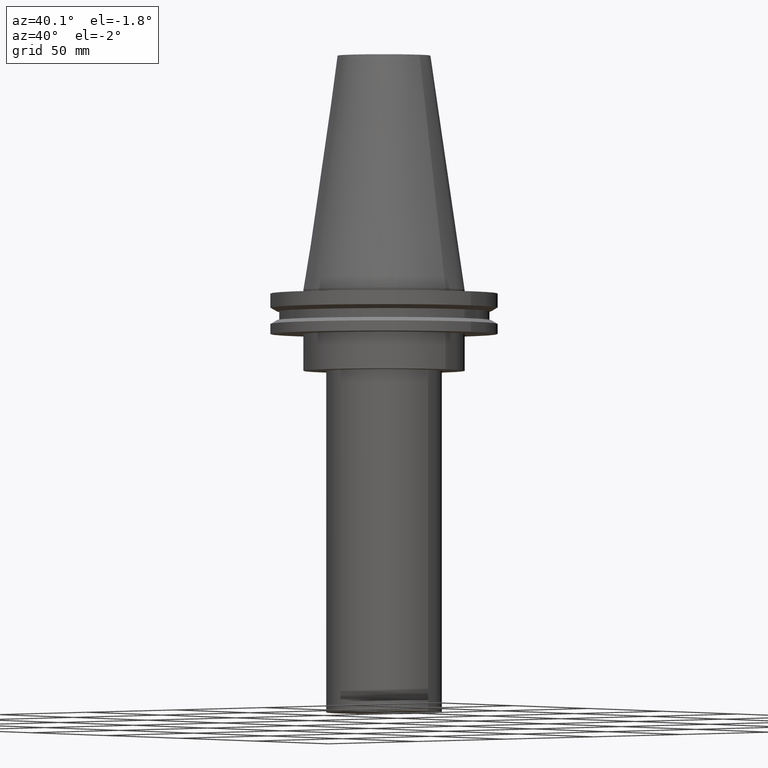
[diagram: clean part render]
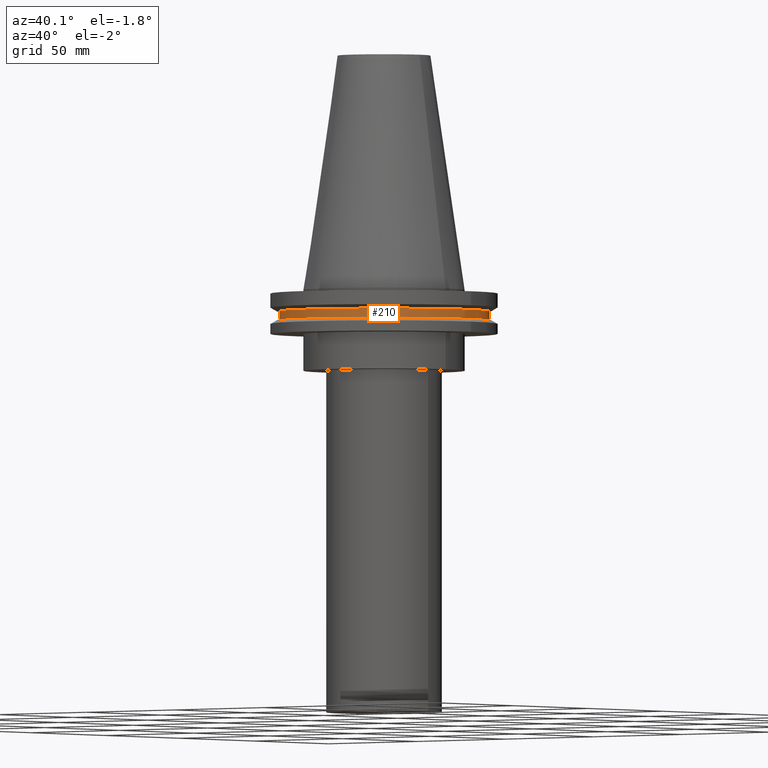
[diagram: same view with one face highlighted and labeled with its STEP entity id]
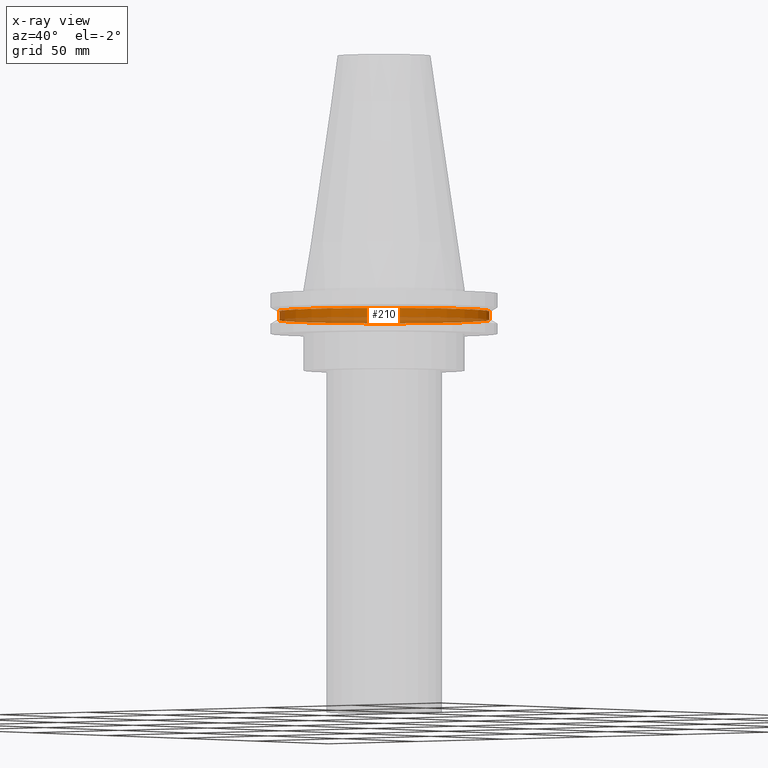
[diagram: x-ray of the same camera — body ghosted, the highlighted face saturated]
A machine part, auxiliary view. The second image highlights one B-rep face of the part: STEP entity #210.
The next image is the same camera in x-ray: the body ghosted, the highlighted face saturated — about 36% of this face is hidden behind the body in this view.
In plain terms, the highlighted cylindrical surface (bore or boss wall) has radius 45.645 mm, axis along (-0, -0, 1).
Its self-contained STEP definition (entity closure, byte-faithful):
#13 = FACE_OUTER_BOUND ( 'NONE', #174, .T. ) ;
#14 = VERTEX_POINT ( 'NONE', #305 ) ;
#16 = AXIS2_PLACEMENT_3D ( 'NONE', #20, #385, #113 ) ;
#18 = DIRECTION ( 'NONE',  ( -0.000000000000000000, -0.000000000000000000, 1.000000000000000000 ) ) ;
#20 = CARTESIAN_POINT ( 'NONE',  ( 0.000000000000000000, 0.000000000000000000, 101.5999999999999943 ) ) ;
#51 = FACE_OUTER_BOUND ( 'NONE', #371, .T. ) ;
#96 = CARTESIAN_POINT ( 'NONE',  ( 45.64500000000000313, 0.000000000000000000, -9.204999999999991189 ) ) ;
#106 = EDGE_CURVE ( 'NONE', #14, #14, #363, .T. ) ;
#113 = DIRECTION ( 'NONE',  ( 1.000000000000000000, 0.000000000000000000, 0.000000000000000000 ) ) ;
#158 = EDGE_CURVE ( 'NONE', #161, #161, #395, .T. ) ;
#161 = VERTEX_POINT ( 'NONE', #96 ) ;
#168 = CYLINDRICAL_SURFACE ( 'NONE', #16, 45.64500000000000313 ) ;
#174 = EDGE_LOOP ( 'NONE', ( #214 ) ) ;
#210 = ADVANCED_FACE ( 'NONE', ( #51, #13 ), #168, .T. ) ;
#211 = ORIENTED_EDGE ( 'NONE', *, *, #158, .F. ) ;
#214 = ORIENTED_EDGE ( 'NONE', *, *, #106, .T. ) ;
#221 = DIRECTION ( 'NONE',  ( -0.000000000000000000, -0.000000000000000000, 1.000000000000000000 ) ) ;
#229 = DIRECTION ( 'NONE',  ( 1.000000000000000000, 0.000000000000000000, 0.000000000000000000 ) ) ;
#236 = AXIS2_PLACEMENT_3D ( 'NONE', #282, #221, #260 ) ;
#251 = AXIS2_PLACEMENT_3D ( 'NONE', #289, #18, #229 ) ;
#260 = DIRECTION ( 'NONE',  ( 1.000000000000000000, 0.000000000000000000, 0.000000000000000000 ) ) ;
#282 = CARTESIAN_POINT ( 'NONE',  ( 0.000000000000000000, 0.000000000000000000, -13.05499999999999794 ) ) ;
#289 = CARTESIAN_POINT ( 'NONE',  ( 0.000000000000000000, 0.000000000000000000, -9.204999999999991189 ) ) ;
#305 = CARTESIAN_POINT ( 'NONE',  ( 45.64500000000000313, 0.000000000000000000, -13.05499999999999794 ) ) ;
#363 = CIRCLE ( 'NONE', #236, 45.64500000000000313 ) ;
#371 = EDGE_LOOP ( 'NONE', ( #211 ) ) ;
#385 = DIRECTION ( 'NONE',  ( -0.000000000000000000, -0.000000000000000000, 1.000000000000000000 ) ) ;
#395 = CIRCLE ( 'NONE', #251, 45.64500000000000313 ) ;